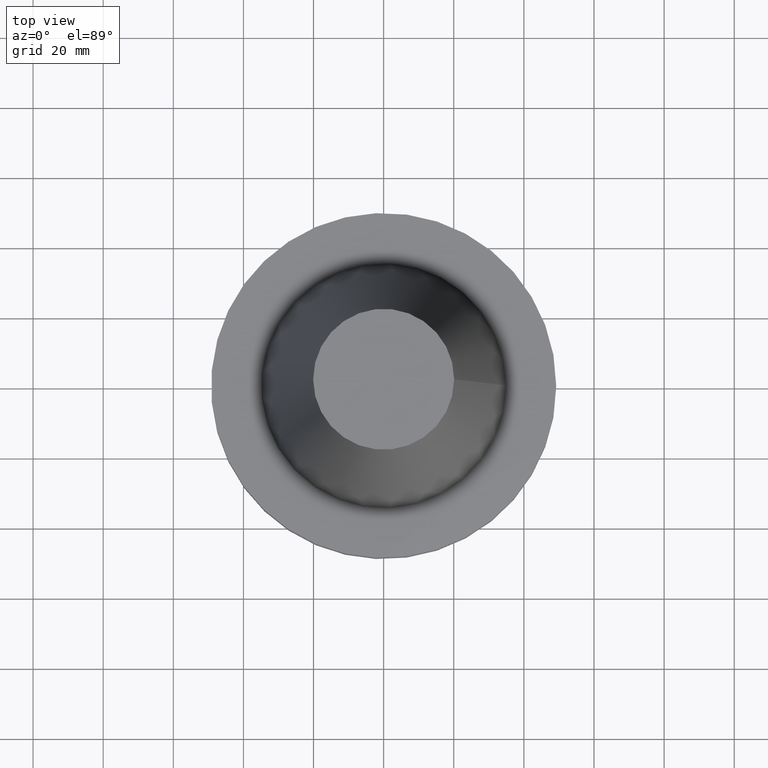
[diagram: clean part render]
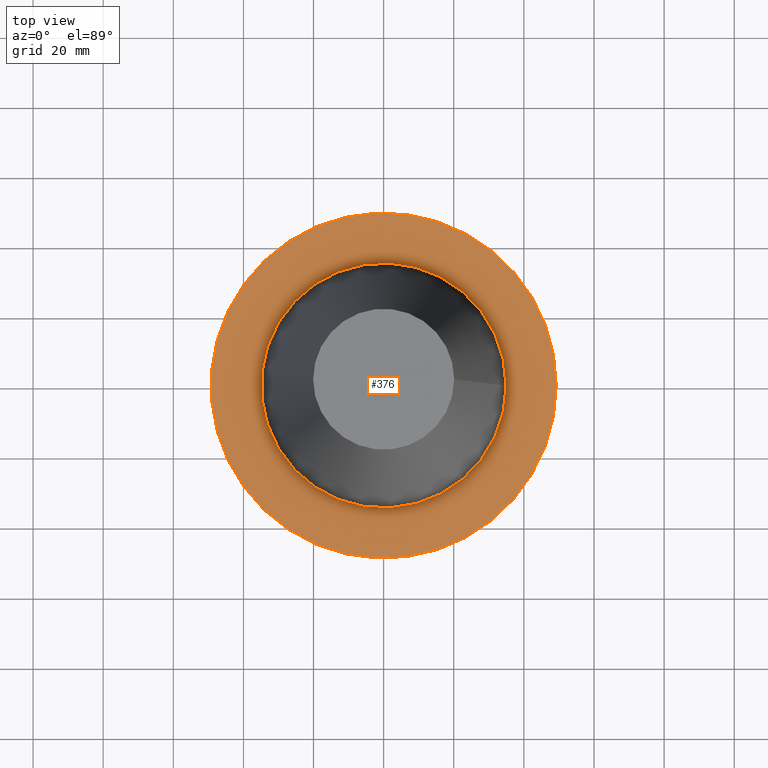
[diagram: same view with one face highlighted and labeled with its STEP entity id]
A machine part, top view. The second image highlights one B-rep face of the part: STEP entity #376.
In plain terms, the highlighted planar face has unit normal (0, 0, -1).
Its self-contained STEP definition (entity closure, byte-faithful):
#33 = DIRECTION ( 'NONE',  ( 1.000000000000000000, 0.000000000000000000, 0.000000000000000000 ) ) ;
#34 = AXIS2_PLACEMENT_3D ( 'NONE', #157, #65, #33 ) ;
#65 = DIRECTION ( 'NONE',  ( -0.000000000000000000, -0.000000000000000000, 1.000000000000000000 ) ) ;
#67 = CARTESIAN_POINT ( 'NONE',  ( 0.000000000000000000, 0.000000000000000000, -1.499999999999987566 ) ) ;
#84 = AXIS2_PLACEMENT_3D ( 'NONE', #240, #384, #357 ) ;
#94 = EDGE_CURVE ( 'NONE', #178, #178, #225, .T. ) ;
#98 = DIRECTION ( 'NONE',  ( -0.000000000000000000, -0.000000000000000000, 1.000000000000000000 ) ) ;
#121 = FACE_OUTER_BOUND ( 'NONE', #355, .T. ) ;
#143 = PLANE ( 'NONE',  #84 ) ;
#153 = EDGE_LOOP ( 'NONE', ( #265 ) ) ;
#157 = CARTESIAN_POINT ( 'NONE',  ( 0.000000000000000000, 0.000000000000000000, -1.499999999999987566 ) ) ;
#171 = AXIS2_PLACEMENT_3D ( 'NONE', #67, #98, #222 ) ;
#178 = VERTEX_POINT ( 'NONE', #330 ) ;
#185 = CIRCLE ( 'NONE', #34, 34.92499999999999005 ) ;
#194 = EDGE_CURVE ( 'NONE', #299, #299, #185, .T. ) ;
#210 = FACE_BOUND ( 'NONE', #153, .T. ) ;
#222 = DIRECTION ( 'NONE',  ( 1.000000000000000000, 0.000000000000000000, 0.000000000000000000 ) ) ;
#225 = CIRCLE ( 'NONE', #171, 49.21499999999999631 ) ;
#240 = CARTESIAN_POINT ( 'NONE',  ( 0.000000000000000000, 49.21499999999999631, -1.499999999999992895 ) ) ;
#265 = ORIENTED_EDGE ( 'NONE', *, *, #194, .F. ) ;
#299 = VERTEX_POINT ( 'NONE', #393 ) ;
#330 = CARTESIAN_POINT ( 'NONE',  ( 49.21499999999999631, 0.000000000000000000, -1.499999999999987566 ) ) ;
#353 = ORIENTED_EDGE ( 'NONE', *, *, #94, .T. ) ;
#355 = EDGE_LOOP ( 'NONE', ( #353 ) ) ;
#357 = DIRECTION ( 'NONE',  ( -1.000000000000000000, 0.000000000000000000, -0.000000000000000000 ) ) ;
#376 = ADVANCED_FACE ( 'NONE', ( #210, #121 ), #143, .F. ) ;
#384 = DIRECTION ( 'NONE',  ( 0.000000000000000000, 0.000000000000000000, -1.000000000000000000 ) ) ;
#393 = CARTESIAN_POINT ( 'NONE',  ( 34.92499999999999005, 0.000000000000000000, -1.499999999999987566 ) ) ;